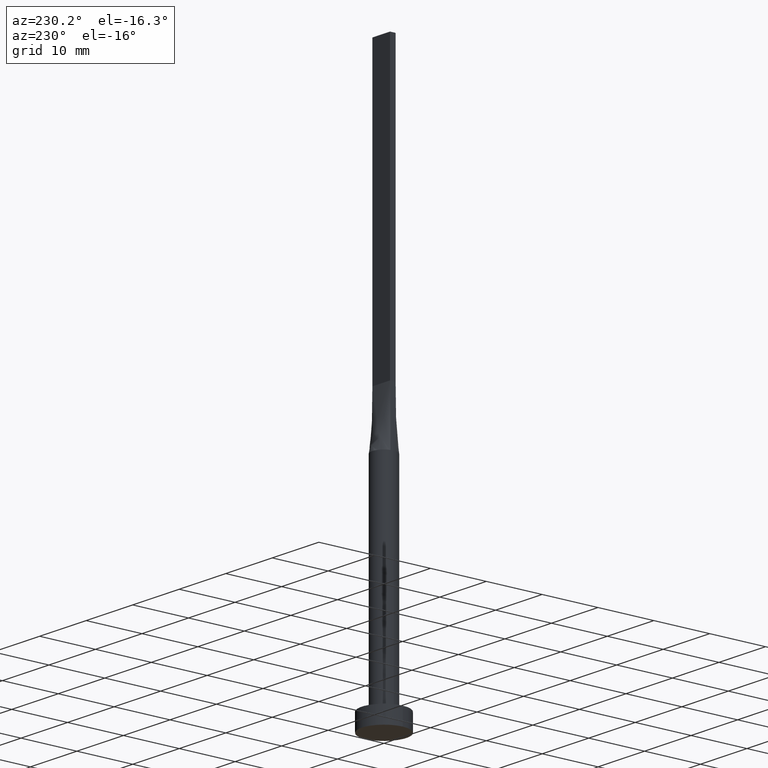
[diagram: clean part render]
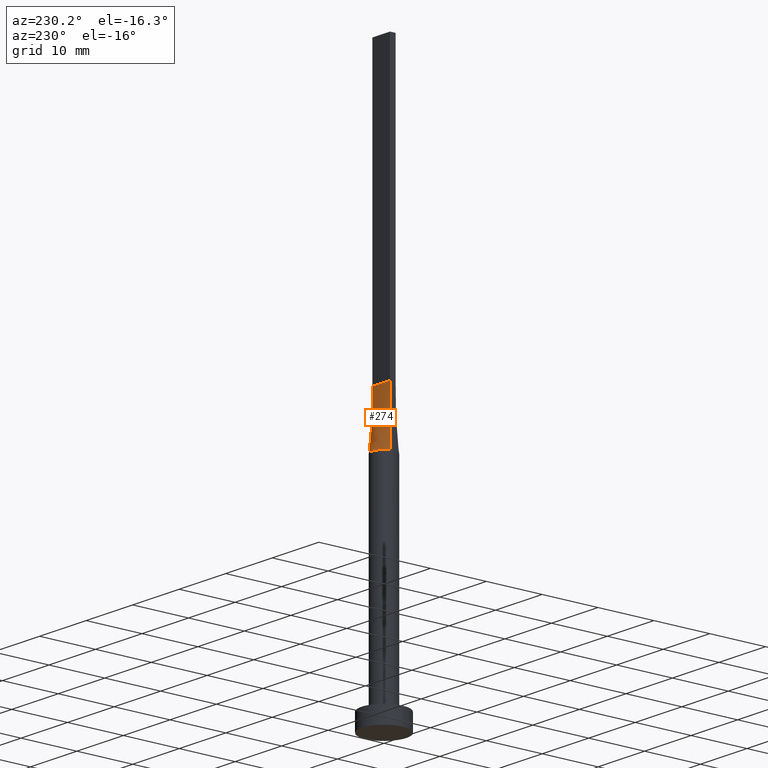
[diagram: same view with one face highlighted and labeled with its STEP entity id]
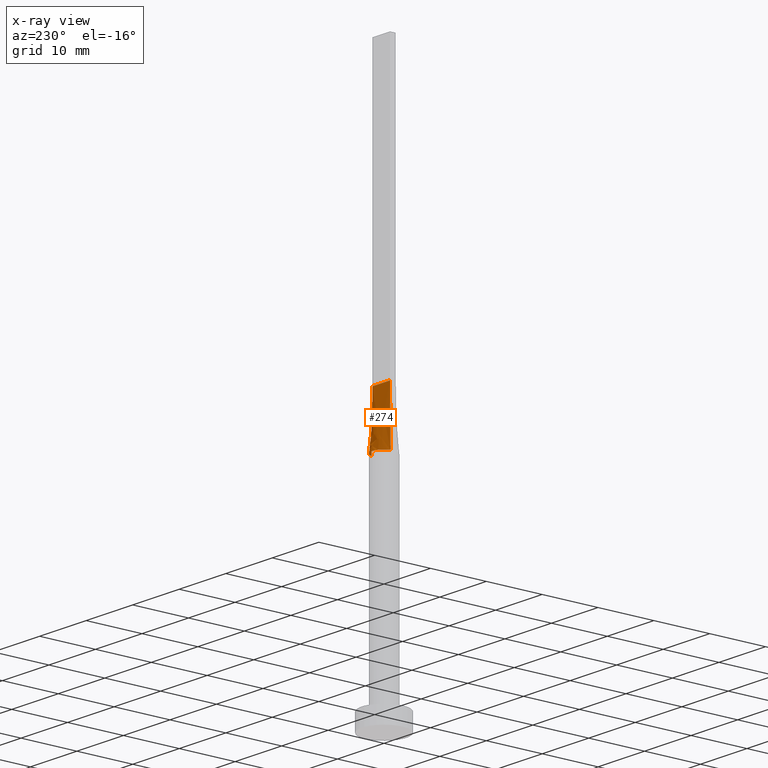
[diagram: x-ray of the same camera — body ghosted, the highlighted face saturated]
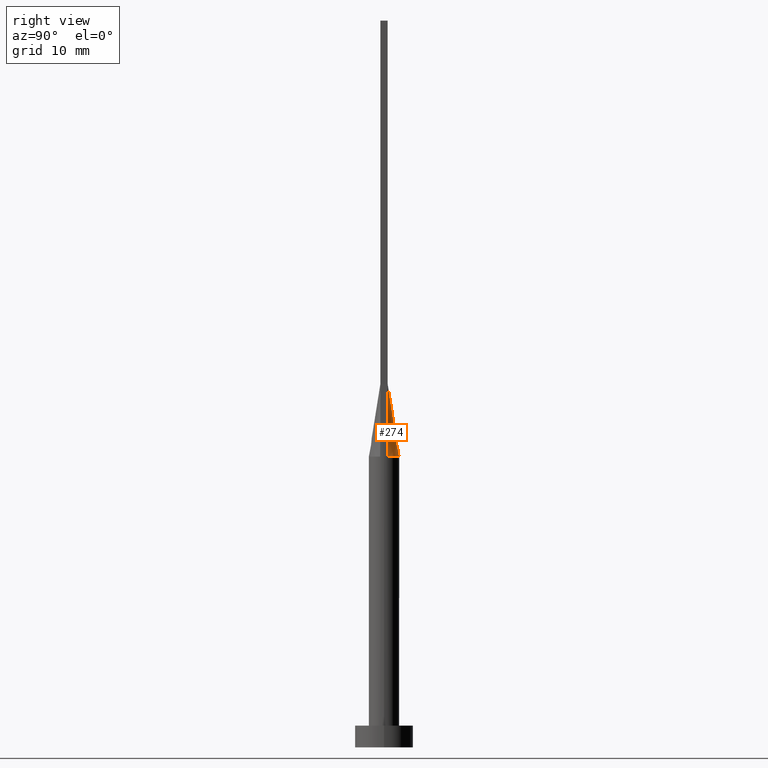
[diagram: same view with one face highlighted and labeled with its STEP entity id]
A machine part, auxiliary view. The second image highlights one B-rep face of the part: STEP entity #274.
The next image is the same camera in x-ray: the body ghosted, the highlighted face saturated — about 0% of this face is hidden behind the body in this view.
A second angle (right view) of the same face is appended — the face is thin or edge-on in the first view.
In plain terms, the highlighted face is a freeform B-spline surface patch.
Its self-contained STEP definition (entity closure, byte-faithful):
#3 = CARTESIAN_POINT ( 'NONE',  ( 1.920830191244603746, 0.8725264301372623876, 40.00000000000000000 ) ) ;
#6 = CARTESIAN_POINT ( 'NONE',  ( 0.6333333333333373005, 0.5000000000000002220, 50.00000000000000000 ) ) ;
#9 = CARTESIAN_POINT ( 'NONE',  ( -0.5389299406762299016, 2.046272663899431965, 39.99999999999999289 ) ) ;
#11 = CARTESIAN_POINT ( 'NONE',  ( -2.030856528251557602, 0.5344359284872521876, 40.00000000000000000 ) ) ;
#15 = CARTESIAN_POINT ( 'NONE',  ( -2.031019593402089818, 0.5344793603115657321, 40.00000000000000000 ) ) ;
#21 = CARTESIAN_POINT ( 'NONE',  ( 2.030996101999494652, 0.5344731476277209126, 40.00000000000000000 ) ) ;
#30 = EDGE_CURVE ( 'NONE', #139, #576, #64, .T. ) ;
#33 = CARTESIAN_POINT ( 'NONE',  ( -1.583333333333331927, 0.5000000000000002220, 50.00000000000000000 ) ) ;
#40 = CARTESIAN_POINT ( 'NONE',  ( 1.583333333333334814, 0.5000000000000002220, 50.00000000000000711 ) ) ;
#42 = CARTESIAN_POINT ( 'NONE',  ( 0.1583333333333381276, 0.5000000000000002220, 50.00000000000000000 ) ) ;
#49 = VERTEX_POINT ( 'NONE', #568 ) ;
#51 = CARTESIAN_POINT ( 'NONE',  ( -0.1583333333333283577, 0.5000000000000002220, 50.00000000000000000 ) ) ;
#55 = CARTESIAN_POINT ( 'NONE',  ( 1.235326090059014614, 1.714395692508636770, 40.00000000000002132 ) ) ;
#57 = CARTESIAN_POINT ( 'NONE',  ( -1.021961681204346384, 1.852908961101259022, 39.99999999999998579 ) ) ;
#64 = B_SPLINE_CURVE_WITH_KNOTS ( 'NONE', 3,
 ( #21, #472, #144, #515, #239, #55, #422, #178, #373, #241, #423, #57, #182, #268, #549, #232, #465, #15 ),
 .UNSPECIFIED., .F., .F.,
 ( 4, 2, 2, 2, 2, 2, 2, 2, 4 ),
 ( 0.000000000000000000, 0.1250000000000000278, 0.2500000000000000555, 0.3750000000000001110, 0.5000000000000000000, 0.6250000000000000000, 0.7500000000000000000, 0.8750000000000001110, 1.000000000000000000 ),
 .UNSPECIFIED. ) ;
#78 = CARTESIAN_POINT ( 'NONE',  ( -1.021961681204346384, 1.852908961101259022, 39.99999999999998579 ) ) ;
#79 = CARTESIAN_POINT ( 'NONE',  ( 1.899999999999999689, 0.5000000000000002220, 50.00000000000000000 ) ) ;
#82 = CARTESIAN_POINT ( 'NONE',  ( -0.6333333333333288628, 0.5000000000000002220, 50.00000000000000000 ) ) ;
#85 = FACE_OUTER_BOUND ( 'NONE', #550, .T. ) ;
#117 = CARTESIAN_POINT ( 'NONE',  ( -2.031019593402089818, 0.5344793603115657321, 40.00000000000000000 ) ) ;
#127 = CARTESIAN_POINT ( 'NONE',  ( 1.108333333333336279, 0.5000000000000002220, 50.00000000000000000 ) ) ;
#133 = CARTESIAN_POINT ( 'NONE',  ( 0.3166666666666711483, 0.5000000000000002220, 50.00000000000000000 ) ) ;
#134 = ORIENTED_EDGE ( 'NONE', *, *, #328, .F. ) ;
#139 = VERTEX_POINT ( 'NONE', #157 ) ;
#144 = CARTESIAN_POINT ( 'NONE',  ( 1.920830191244603746, 0.8725264301372623876, 40.00000000000000000 ) ) ;
#157 = CARTESIAN_POINT ( 'NONE',  ( 2.030996101999494652, 0.5344731476277209126, 40.00000000000000000 ) ) ;
#163 = CARTESIAN_POINT ( 'NONE',  ( -1.899999999999999689, 0.5000000000000002220, 50.00000000000000000 ) ) ;
#167 = DIRECTION ( 'NONE',  ( 0.01308445504626045038, -0.003443277643752733208, 0.9999084662483913588 ) ) ;
#169 = CARTESIAN_POINT ( 'NONE',  ( 2.030856528251557602, 0.5344359284872521876, 40.00000000000000000 ) ) ;
#178 = CARTESIAN_POINT ( 'NONE',  ( 0.5389299406762297906, 2.046272663899431077, 40.00000000000000000 ) ) ;
#182 = CARTESIAN_POINT ( 'NONE',  ( -1.235326090059014836, 1.714395692508636326, 40.00000000000000000 ) ) ;
#197 = CARTESIAN_POINT ( 'NONE',  ( -1.583604922800830428, 1.399063468093436402, 40.00000000000000000 ) ) ;
#199 = LINE ( 'NONE', #163, #494 ) ;
#217 = CARTESIAN_POINT ( 'NONE',  ( 1.266666666666669494, 0.5000000000000002220, 50.00000000000000711 ) ) ;
#222 = CARTESIAN_POINT ( 'NONE',  ( 1.235326090059014614, 1.714395692508636770, 40.00000000000002132 ) ) ;
#232 = CARTESIAN_POINT ( 'NONE',  ( -1.920830191244604412, 0.8725264301372623876, 40.00000000000000711 ) ) ;
#238 = CARTESIAN_POINT ( 'NONE',  ( -1.108333333333330062, 0.5000000000000002220, 50.00000000000000000 ) ) ;
#239 = CARTESIAN_POINT ( 'NONE',  ( 1.583604922800830428, 1.399063468093436624, 40.00000000000000000 ) ) ;
#241 = CARTESIAN_POINT ( 'NONE',  ( -0.2698109971861040179, 2.100000000000000089, 40.00000000000000711 ) ) ;
#243 = EDGE_CURVE ( 'NONE', #576, #49, #403, .T. ) ;
#249 = CARTESIAN_POINT ( 'NONE',  ( -1.235326090059014836, 1.714395692508636326, 40.00000000000000000 ) ) ;
#260 = CARTESIAN_POINT ( 'NONE',  ( 1.987786580065029174, 0.6981017315960605929, 40.00000000000000000 ) ) ;
#261 = CARTESIAN_POINT ( 'NONE',  ( -1.920830191244604412, 0.8725264301372623876, 40.00000000000000711 ) ) ;
#262 = CARTESIAN_POINT ( 'NONE',  ( 1.719043754744862040, 1.223020672007445464, 40.00000000000001421 ) ) ;
#264 = CARTESIAN_POINT ( 'NONE',  ( 0.2698109971861041290, 2.100000000000000089, 39.99999999999999289 ) ) ;
#268 = CARTESIAN_POINT ( 'NONE',  ( -1.583604922800830428, 1.399063468093436402, 40.00000000000000000 ) ) ;
#274 = ADVANCED_FACE ( 'NONE', ( #85 ), #289, .T. ) ;
#278 = DIRECTION ( 'NONE',  ( -0.01308445504626045038, -0.003443277643752798260, 0.9999084662483913588 ) ) ;
#289 = B_SPLINE_SURFACE_WITH_KNOTS ( 'NONE', 3, 1, ( 
 ( #169, #79 ),
 ( #260, #453 ),
 ( #3, #40 ),
 ( #262, #217 ),
 ( #459, #127 ),
 ( #222, #409 ),
 ( #503, #6 ),
 ( #490, #133 ),
 ( #264, #42 ),
 ( #307, #51 ),
 ( #9, #532 ),
 ( #78, #82 ),
 ( #249, #559 ),
 ( #197, #238 ),
 ( #333, #443 ),
 ( #261, #33 ),
 ( #412, #321 ),
 ( #11, #466 ) ),
 .UNSPECIFIED., .F., .F., .F.,
 ( 4, 2, 2, 2, 2, 2, 2, 2, 4 ),
 ( 2, 2 ),
 ( 0.000000000000000000, 0.1250000000000000278, 0.2500000000000000555, 0.3750000000000001110, 0.5000000000000000000, 0.6250000000000000000, 0.7500000000000000000, 0.8750000000000001110, 1.000000000000000000 ),
 ( 0.000000000000000000, 1.000000000000000000 ),
 .UNSPECIFIED. ) ;
#307 = CARTESIAN_POINT ( 'NONE',  ( -0.2698109971861040179, 2.100000000000000089, 40.00000000000000711 ) ) ;
#318 = ORIENTED_EDGE ( 'NONE', *, *, #243, .T. ) ;
#320 = LINE ( 'NONE', #471, #417 ) ;
#321 = CARTESIAN_POINT ( 'NONE',  ( -1.741666666666665808, 0.5000000000000002220, 50.00000000000000000 ) ) ;
#328 = EDGE_CURVE ( 'NONE', #139, #408, #320, .T. ) ;
#333 = CARTESIAN_POINT ( 'NONE',  ( -1.719043754744861596, 1.223020672007445242, 39.99999999999999289 ) ) ;
#336 = VECTOR ( 'NONE', #167, 1000.000000000000114 ) ;
#373 = CARTESIAN_POINT ( 'NONE',  ( 0.2698109971861041290, 2.100000000000000089, 39.99999999999999289 ) ) ;
#384 = EDGE_CURVE ( 'NONE', #408, #49, #199, .T. ) ;
#387 = CARTESIAN_POINT ( 'NONE',  ( 1.899999999999999689, 0.5000000000000002220, 50.00000000000000000 ) ) ;
#403 = LINE ( 'NONE', #406, #336 ) ;
#406 = CARTESIAN_POINT ( 'NONE',  ( -1.965428264125778535, 0.5172179642436262048, 45.00000000000000000 ) ) ;
#408 = VERTEX_POINT ( 'NONE', #387 ) ;
#409 = CARTESIAN_POINT ( 'NONE',  ( 0.7916666666666702934, 0.5000000000000002220, 50.00000000000000000 ) ) ;
#412 = CARTESIAN_POINT ( 'NONE',  ( -1.987786580065029174, 0.6981017315960602598, 39.99999999999999289 ) ) ;
#417 = VECTOR ( 'NONE', #278, 1000.000000000000114 ) ;
#422 = CARTESIAN_POINT ( 'NONE',  ( 1.021961681204346606, 1.852908961101259244, 40.00000000000000711 ) ) ;
#423 = CARTESIAN_POINT ( 'NONE',  ( -0.5389299406762299016, 2.046272663899431965, 39.99999999999999289 ) ) ;
#434 = DIRECTION ( 'NONE',  ( -1.000000000000000000, -0.000000000000000000, -0.000000000000000000 ) ) ;
#443 = CARTESIAN_POINT ( 'NONE',  ( -1.266666666666664165, 0.5000000000000002220, 50.00000000000000000 ) ) ;
#453 = CARTESIAN_POINT ( 'NONE',  ( 1.741666666666667362, 0.5000000000000002220, 50.00000000000000711 ) ) ;
#459 = CARTESIAN_POINT ( 'NONE',  ( 1.583604922800830428, 1.399063468093436624, 40.00000000000000000 ) ) ;
#465 = CARTESIAN_POINT ( 'NONE',  ( -1.987786580065029174, 0.6981017315960602598, 39.99999999999999289 ) ) ;
#466 = CARTESIAN_POINT ( 'NONE',  ( -1.899999999999999689, 0.5000000000000002220, 50.00000000000000000 ) ) ;
#471 = CARTESIAN_POINT ( 'NONE',  ( 1.965428264125778535, 0.5172179642436265379, 45.00000000000000000 ) ) ;
#472 = CARTESIAN_POINT ( 'NONE',  ( 1.987786580065029174, 0.6981017315960605929, 40.00000000000000000 ) ) ;
#490 = CARTESIAN_POINT ( 'NONE',  ( 0.5389299406762297906, 2.046272663899431077, 40.00000000000000000 ) ) ;
#494 = VECTOR ( 'NONE', #434, 1000.000000000000000 ) ;
#503 = CARTESIAN_POINT ( 'NONE',  ( 1.021961681204346606, 1.852908961101259244, 40.00000000000000711 ) ) ;
#513 = ORIENTED_EDGE ( 'NONE', *, *, #384, .F. ) ;
#515 = CARTESIAN_POINT ( 'NONE',  ( 1.719043754744862040, 1.223020672007445464, 40.00000000000001421 ) ) ;
#532 = CARTESIAN_POINT ( 'NONE',  ( -0.3166666666666618224, 0.5000000000000002220, 50.00000000000000000 ) ) ;
#549 = CARTESIAN_POINT ( 'NONE',  ( -1.719043754744861596, 1.223020672007445242, 39.99999999999999289 ) ) ;
#550 = EDGE_LOOP ( 'NONE', ( #558, #318, #513, #134 ) ) ;
#558 = ORIENTED_EDGE ( 'NONE', *, *, #30, .T. ) ;
#559 = CARTESIAN_POINT ( 'NONE',  ( -0.7916666666666625218, 0.5000000000000002220, 50.00000000000000000 ) ) ;
#568 = CARTESIAN_POINT ( 'NONE',  ( -1.899999999999999689, 0.5000000000000002220, 50.00000000000000000 ) ) ;
#576 = VERTEX_POINT ( 'NONE', #117 ) ;